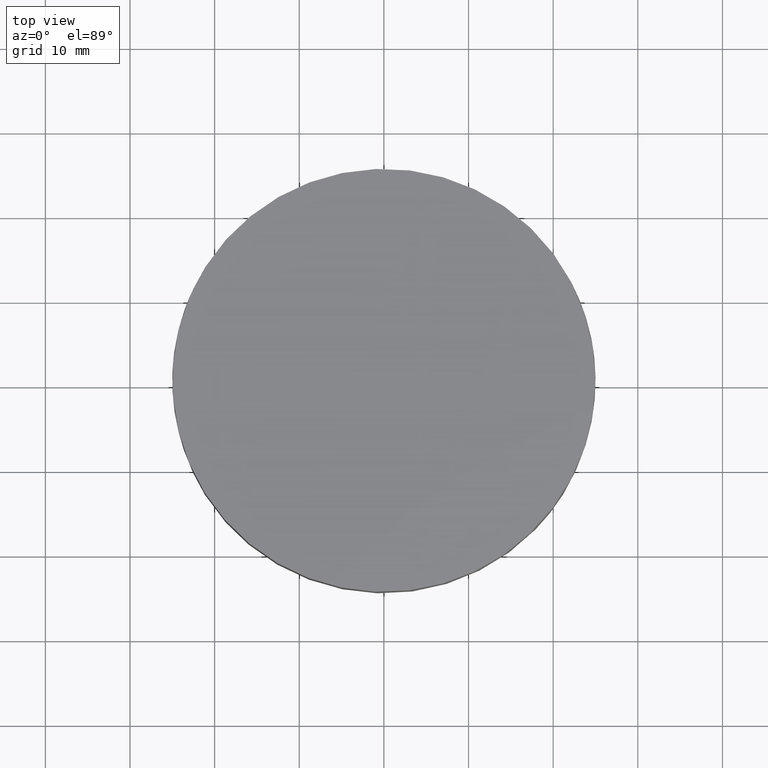
[diagram: clean part render]
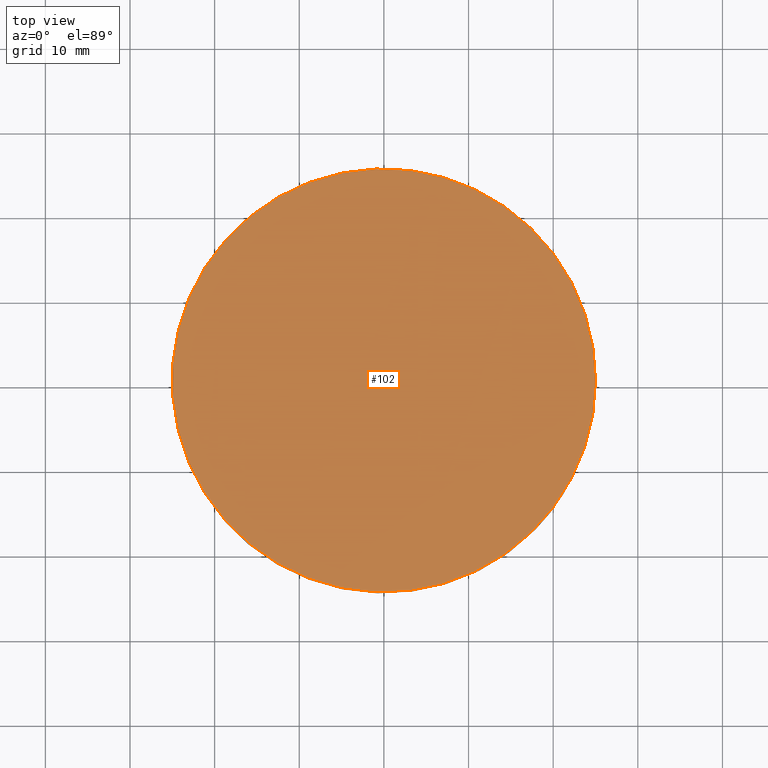
[diagram: same view with one face highlighted and labeled with its STEP entity id]
A machine part, top view. The second image highlights one B-rep face of the part: STEP entity #102.
In plain terms, the highlighted planar face has unit normal (0, 0, 1).
Its self-contained STEP definition (entity closure, byte-faithful):
#102=ADVANCED_FACE('',(#160),#161,.T.);
#160=FACE_OUTER_BOUND('',#219,.T.);
#161=PLANE('',#220);
#219=EDGE_LOOP('',(#453));
#220=AXIS2_PLACEMENT_3D('',#454,#455,#456);
#453=ORIENTED_EDGE('',*,*,#519,.T.);
#454=CARTESIAN_POINT('',(-12.5,8.88178419700125E-016,7.105427357601E-015));
#455=DIRECTION('',(0.0,0.0,1.0));
#456=DIRECTION('',(1.0,0.0,0.0));
#519=EDGE_CURVE('',#634,#634,#635,.T.);
#634=VERTEX_POINT('',#865);
#635=CIRCLE('',#866,25.0);
#865=CARTESIAN_POINT('',(25.0000000000001,-7.105427357601E-015,0.0));
#866=AXIS2_PLACEMENT_3D('',#1048,#1049,#1050);
#1048=CARTESIAN_POINT('',(0.0,0.0,0.0));
#1049=DIRECTION('',(0.0,0.0,1.0));
#1050=DIRECTION('',(-1.0,0.0,0.0));